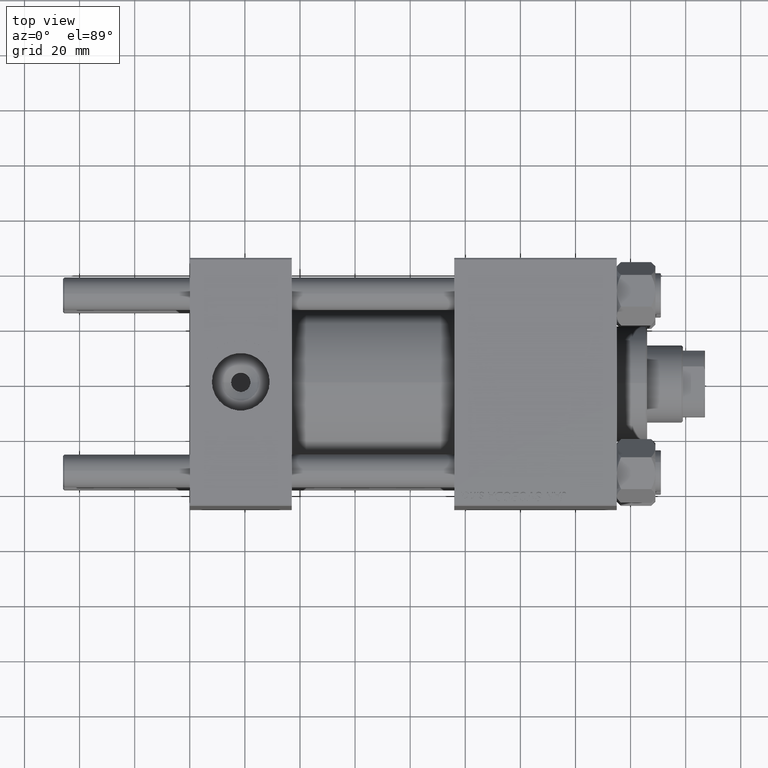
[diagram: clean part render]
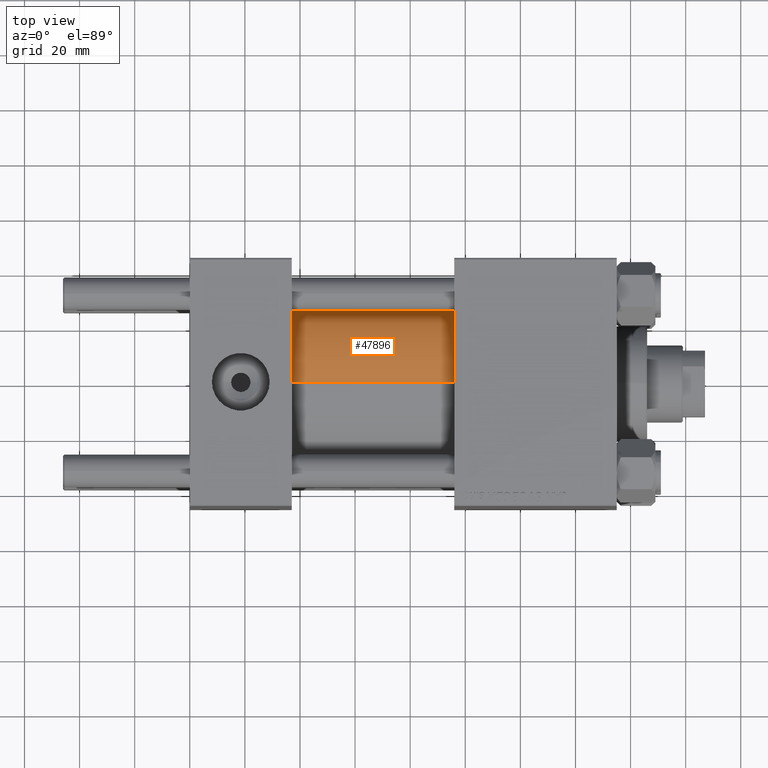
[diagram: same view with one face highlighted and labeled with its STEP entity id]
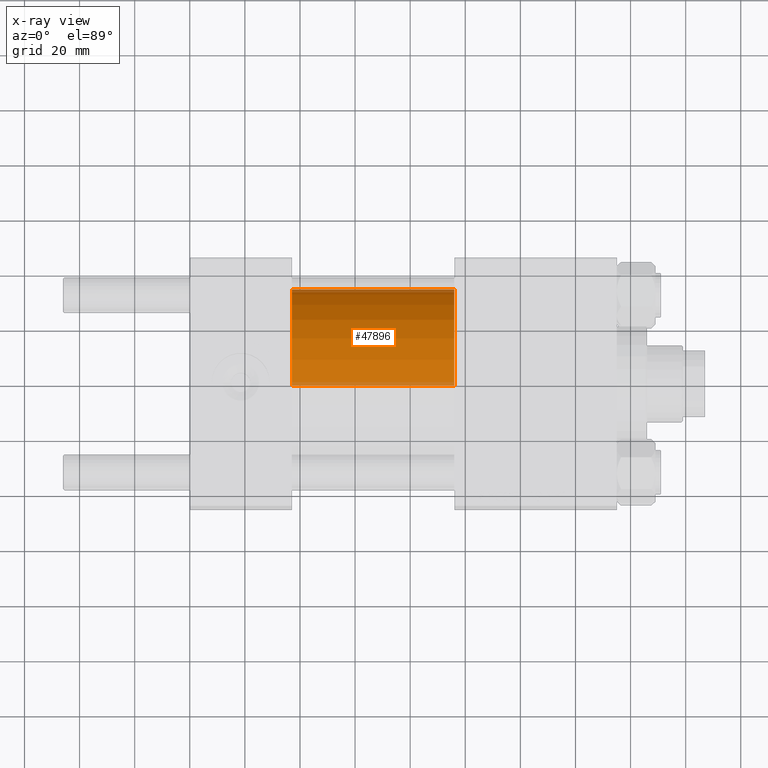
[diagram: x-ray of the same camera — body ghosted, the highlighted face saturated]
A machine part, top view. The second image highlights one B-rep face of the part: STEP entity #47896.
The next image is the same camera in x-ray: the body ghosted, the highlighted face saturated — about 7% of this face is hidden behind the body in this view.
In plain terms, the highlighted cylindrical surface (partial cylindrical patch) has radius 34.5 mm, axis along (-1, -0, -0).
Its self-contained STEP definition (entity closure, byte-faithful):
#858 = CARTESIAN_POINT ( 'NONE',  ( 96.00000000000000000, 0.000000000000000000, 0.000000000000000000 ) ) ;
#2211 = VECTOR ( 'NONE', #31096, 1000.000000000000000 ) ;
#3485 = CARTESIAN_POINT ( 'NONE',  ( 37.00000000000000000, 4.225031457058367344E-15, -34.49999999999999289 ) ) ;
#4094 = DIRECTION ( 'NONE',  ( 0.000000000000000000, 0.000000000000000000, -1.000000000000000000 ) ) ;
#4652 = DIRECTION ( 'NONE',  ( -1.000000000000000000, -0.000000000000000000, -0.000000000000000000 ) ) ;
#5017 = AXIS2_PLACEMENT_3D ( 'NONE', #21151, #25180, #32506 ) ;
#5032 = EDGE_CURVE ( 'NONE', #9889, #25065, #27847, .T. ) ;
#6267 = CIRCLE ( 'NONE', #42610, 34.49999999999999289 ) ;
#6486 = EDGE_LOOP ( 'NONE', ( #39127, #6963, #15484, #48390 ) ) ;
#6928 = CARTESIAN_POINT ( 'NONE',  ( 96.00000000000000000, 4.225031457058367344E-15, -34.49999999999999289 ) ) ;
#6963 = ORIENTED_EDGE ( 'NONE', *, *, #5032, .T. ) ;
#9889 = VERTEX_POINT ( 'NONE', #6928 ) ;
#10259 = VERTEX_POINT ( 'NONE', #11804 ) ;
#11632 = LINE ( 'NONE', #46009, #2211 ) ;
#11804 = CARTESIAN_POINT ( 'NONE',  ( 37.00000000000000000, 0.000000000000000000, 34.49999999999999289 ) ) ;
#15484 = ORIENTED_EDGE ( 'NONE', *, *, #33685, .T. ) ;
#16059 = FACE_OUTER_BOUND ( 'NONE', #6486, .T. ) ;
#19102 = CYLINDRICAL_SURFACE ( 'NONE', #47542, 34.49999999999999289 ) ;
#21151 = CARTESIAN_POINT ( 'NONE',  ( 37.00000000000000000, 0.000000000000000000, 0.000000000000000000 ) ) ;
#23155 = DIRECTION ( 'NONE',  ( 0.000000000000000000, 0.000000000000000000, 1.000000000000000000 ) ) ;
#25065 = VERTEX_POINT ( 'NONE', #3485 ) ;
#25180 = DIRECTION ( 'NONE',  ( 1.000000000000000000, -0.000000000000000000, 0.000000000000000000 ) ) ;
#27847 = LINE ( 'NONE', #47784, #38598 ) ;
#31096 = DIRECTION ( 'NONE',  ( -1.000000000000000000, -0.000000000000000000, -0.000000000000000000 ) ) ;
#32506 = DIRECTION ( 'NONE',  ( 0.000000000000000000, 0.000000000000000000, 1.000000000000000000 ) ) ;
#33200 = VERTEX_POINT ( 'NONE', #39885 ) ;
#33456 = CARTESIAN_POINT ( 'NONE',  ( 96.00000000000000000, 0.000000000000000000, 0.000000000000000000 ) ) ;
#33685 = EDGE_CURVE ( 'NONE', #25065, #10259, #42145, .T. ) ;
#38598 = VECTOR ( 'NONE', #39693, 1000.000000000000000 ) ;
#39127 = ORIENTED_EDGE ( 'NONE', *, *, #44487, .F. ) ;
#39693 = DIRECTION ( 'NONE',  ( -1.000000000000000000, -0.000000000000000000, -0.000000000000000000 ) ) ;
#39885 = CARTESIAN_POINT ( 'NONE',  ( 96.00000000000000000, 0.000000000000000000, 34.49999999999999289 ) ) ;
#42145 = CIRCLE ( 'NONE', #5017, 34.49999999999999289 ) ;
#42610 = AXIS2_PLACEMENT_3D ( 'NONE', #33456, #49121, #4094 ) ;
#43891 = EDGE_CURVE ( 'NONE', #33200, #10259, #11632, .T. ) ;
#44487 = EDGE_CURVE ( 'NONE', #9889, #33200, #6267, .T. ) ;
#46009 = CARTESIAN_POINT ( 'NONE',  ( 96.00000000000000000, 0.000000000000000000, 34.49999999999999289 ) ) ;
#47542 = AXIS2_PLACEMENT_3D ( 'NONE', #858, #4652, #23155 ) ;
#47784 = CARTESIAN_POINT ( 'NONE',  ( 96.00000000000000000, 4.225031457058367344E-15, -34.49999999999999289 ) ) ;
#47896 = ADVANCED_FACE ( 'NONE', ( #16059 ), #19102, .T. ) ;
#48390 = ORIENTED_EDGE ( 'NONE', *, *, #43891, .F. ) ;
#49121 = DIRECTION ( 'NONE',  ( 1.000000000000000000, 0.000000000000000000, 0.000000000000000000 ) ) ;